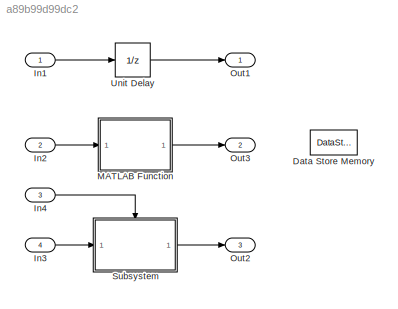
MODEL slx_a89b99d99dc2
KIND model
CONFIG AbsTol = auto
CONFIG EnableMultiTasking = off
CONFIG FixedStep = 0.1
CONFIG MaxStep = auto
CONFIG MinStep = auto
CONFIG PreLoadFcn = load test_data.mat;
CONFIG RelTol = 1e-3
CONFIG SampleTimeConstraint = Unconstrained
CONFIG Solver = FixedStepDiscrete
CONFIG SolverName = FixedStepDiscrete
CONFIG StartTime = 0.0
CONFIG StopTime = 10.0
BLOCK [DataStoreMemory] Data Store Memory
  DataStoreName = ds_state
  Dimensions = 35
  OutDataTypeStr = int8
  ReadBeforeWriteMsg = warning
  ShowAdditionalParam = off
  SignalType = real
  WriteAfterReadMsg = warning
  WriteAfterWriteMsg = warning
BLOCK [Inport] In1
  BusOutputAsStruct = on
  IconDisplay = Port number
  OutDataTypeStr = double
BLOCK [Inport] In2
  IconDisplay = Port number
  OutDataTypeStr = int8
  Port = 2
  PortDimensions = 35
BLOCK [Inport] In3
  IconDisplay = Port number
  Interpolate = off
  OutDataTypeStr = single
  Port = 4
  PortDimensions = 100
  VarSizeSig = Yes
BLOCK [Inport] In4
  IconDisplay = Port number
  Interpolate = off
  Port = 3
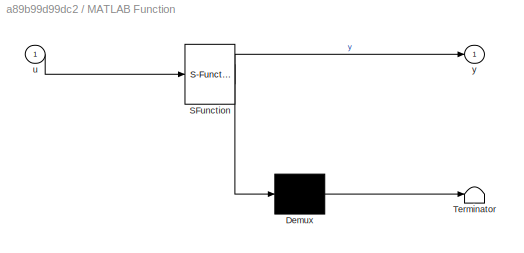
BLOCK [SubSystem] MATLAB Function
  ErrorFcn = Stateflow.Translate.translate
  PermitHierarchicalResolution = ExplicitOnly
  Ports = [1, 1]
  RequestExecContextInheritance = off
  SFBlockType = MATLAB Function
  TreatAsAtomicUnit = on
BLOCK [Demux] MATLAB Function/ Demux 
  Outputs = 1
  Ports = [1, 1]
BLOCK [S-Function] MATLAB Function/ SFunction 
  EnableBusSupport = on
  FunctionName = sf_sfun
  PortCounts = [1 2]
  Ports = [1, 2]
  SFcnIsStateOwnerBlock = off
  SFunctionDeploymentMode = off
  Tag = Stateflow S-Function mCDS 2
BLOCK [Terminator] MATLAB Function/ Terminator 
BLOCK [Inport] MATLAB Function/u
  IconDisplay = Port number
BLOCK [Outport] MATLAB Function/y
  IconDisplay = Port number
BLOCK [Outport] Out1
  BusOutputAsStruct = on
  IconDisplay = Port number
  OutDataTypeStr = double
BLOCK [Outport] Out2
  BusOutputAsStruct = on
  IconDisplay = Port number
  Port = 3
BLOCK [Outport] Out3
  BusOutputAsStruct = on
  IconDisplay = Port number
  OutDataTypeStr = int8
  Port = 2
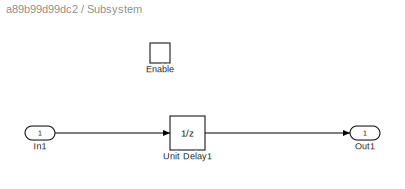
BLOCK [SubSystem] Subsystem
  Ports = [1, 1, 1]
  RequestExecContextInheritance = off
BLOCK [EnablePort] Subsystem/Enable
  Ports = []
  StatesWhenEnabling = reset
BLOCK [Inport] Subsystem/In1
  IconDisplay = Port number
BLOCK [Outport] Subsystem/Out1
  IconDisplay = Port number
BLOCK [UnitDelay] Subsystem/Unit Delay1
  InputProcessing = Elements as channels (sample based)
  SampleTime = -1
  StateName = state2
BLOCK [UnitDelay] Unit Delay
  InputProcessing = Elements as channels (sample based)
  SampleTime = -1
  StateMustResolveToSignalObject = on
  StateName = state1
LINE In1:1 -> Unit Delay:1
LINE In2:1 -> MATLAB Function:1
LINE In3:1 -> Subsystem:1
LINE In4:1 -> Subsystem:enable
LINE MATLAB Function:1 -> Out3:1
LINE Subsystem/In1:1 -> Subsystem/Unit Delay1:1
LINE Subsystem/Unit Delay1:1 -> Subsystem/Out1:1
LINE Subsystem:1 -> Out2:1
LINE Unit Delay:1 -> Out1:1
CHART MATLAB Function states=1 transitions=1
  STATE_LABEL 'eML_blk_kernel()'
  STATE_LABEL "SCRIPT:\nfunction y = fcn(u) %#codegen\npersistent ds_state;\n\nif isempty(ds_state)\n    ds_state = zeros(35,1,'int8');\nend\ny = ds_state;\nds_state  = u;\n\n"
